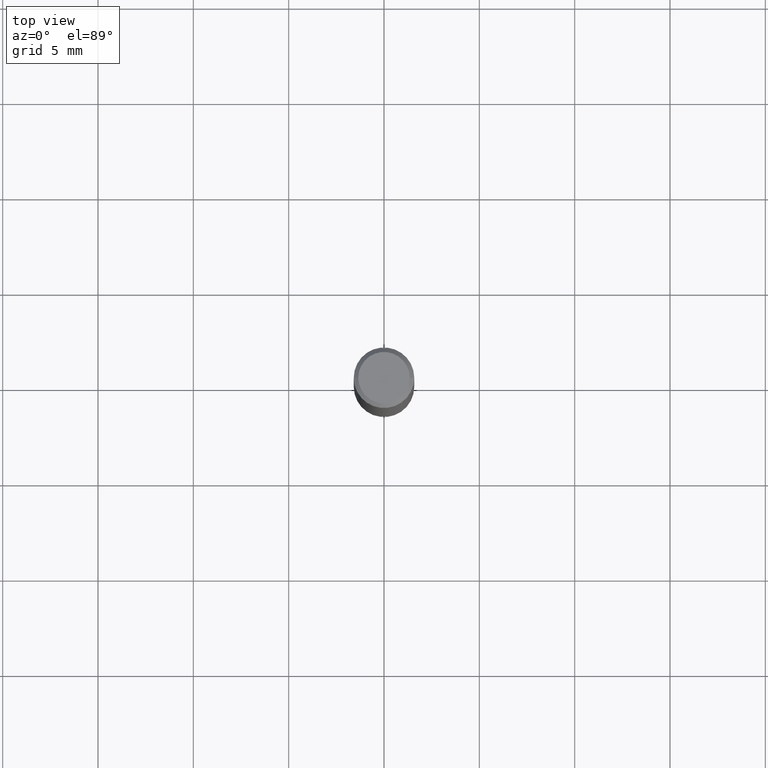
[diagram: clean part render]
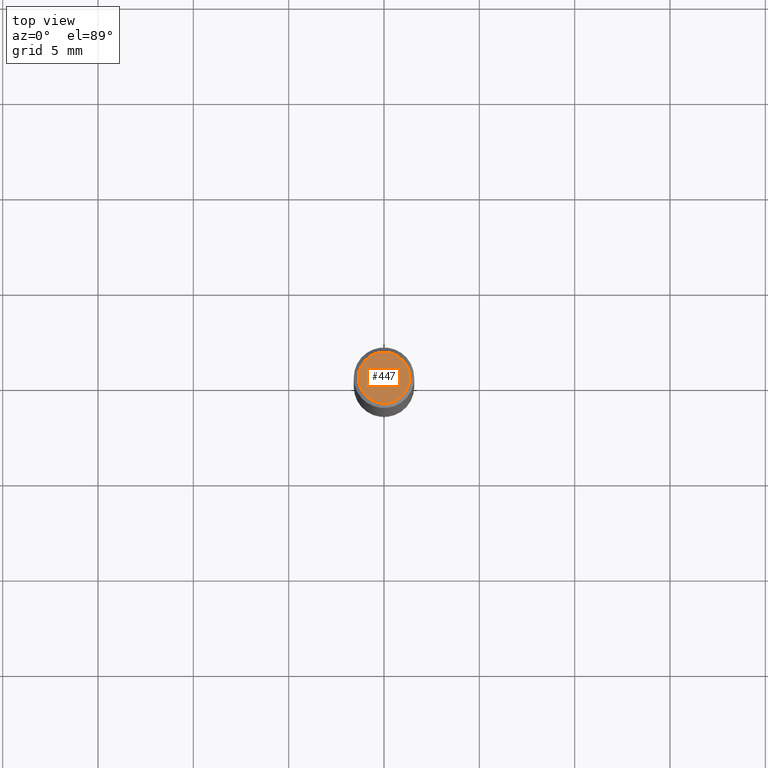
[diagram: same view with one face highlighted and labeled with its STEP entity id]
A machine part, top view. The second image highlights one B-rep face of the part: STEP entity #447.
In plain terms, the highlighted planar face has unit normal (0, -0, -1).
Its self-contained STEP definition (entity closure, byte-faithful):
#7 = AXIS2_PLACEMENT_3D ( 'NONE', #215, #268, #448 ) ;
#9 = DIRECTION ( 'NONE',  ( 2.438088387897960049E-29, -3.491481338843145188E-15, -1.000000000000000000 ) ) ;
#65 = AXIS2_PLACEMENT_3D ( 'NONE', #252, #9, #558 ) ;
#95 = EDGE_CURVE ( 'NONE', #205, #582, #129, .T. ) ;
#108 = DIRECTION ( 'NONE',  ( 1.000000000000000000, -6.982962677686266711E-15, 4.875930095424100059E-29 ) ) ;
#125 = CARTESIAN_POINT ( 'NONE',  ( -0.05312499999999999861, 3.873362110279099094E-16, -5.787680772773044021E-18 ) ) ;
#129 = CIRCLE ( 'NONE', #237, 0.05312499999999999861 ) ;
#149 = ORIENTED_EDGE ( 'NONE', *, *, #566, .T. ) ;
#205 = VERTEX_POINT ( 'NONE', #307 ) ;
#215 = CARTESIAN_POINT ( 'NONE',  ( 1.415359278996747967E-46, -2.020757941330909984E-32, -5.787680772770392401E-18 ) ) ;
#237 = AXIS2_PLACEMENT_3D ( 'NONE', #474, #508, #108 ) ;
#252 = CARTESIAN_POINT ( 'NONE',  ( 7.076796394983739835E-47, -1.010378970665454992E-32, -2.893840386385196200E-18 ) ) ;
#266 = EDGE_LOOP ( 'NONE', ( #149, #588 ) ) ;
#268 = DIRECTION ( 'NONE',  ( -2.445468806185136597E-29, 3.491481338843145583E-15, 1.000000000000000000 ) ) ;
#307 = CARTESIAN_POINT ( 'NONE',  ( 0.05312499999999999861, -4.129888592719939842E-16, -5.787680772767651417E-18 ) ) ;
#359 = CIRCLE ( 'NONE', #7, 0.05312499999999999861 ) ;
#427 = FACE_OUTER_BOUND ( 'NONE', #266, .T. ) ;
#447 = ADVANCED_FACE ( 'NONE', ( #427 ), #563, .F. ) ;
#448 = DIRECTION ( 'NONE',  ( 1.000000000000000000, -6.982962677686266711E-15, 4.875930095424100059E-29 ) ) ;
#474 = CARTESIAN_POINT ( 'NONE',  ( 1.415359278996747967E-46, -2.020757941330909984E-32, -5.787680772770392401E-18 ) ) ;
#508 = DIRECTION ( 'NONE',  ( -2.445468806185136597E-29, 3.491481338843145583E-15, 1.000000000000000000 ) ) ;
#558 = DIRECTION ( 'NONE',  ( -1.000000000000000000, 6.982962677686265922E-15, -4.876176775795935793E-29 ) ) ;
#563 = PLANE ( 'NONE',  #65 ) ;
#566 = EDGE_CURVE ( 'NONE', #582, #205, #359, .T. ) ;
#582 = VERTEX_POINT ( 'NONE', #125 ) ;
#588 = ORIENTED_EDGE ( 'NONE', *, *, #95, .T. ) ;